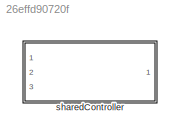
MODEL slx_26effd90720f
KIND library
CONFIG AbsTol = auto
CONFIG EnableMultiTasking = off
CONFIG FixedStep = auto
CONFIG MaxStep = auto
CONFIG MinStep = auto
CONFIG RelTol = 1e-3
CONFIG SampleTimeConstraint = Unconstrained
CONFIG Solver = VariableStepAuto
CONFIG SolverName = VariableStepAuto
CONFIG StartTime = 0.0
CONFIG StopTime = 10.0
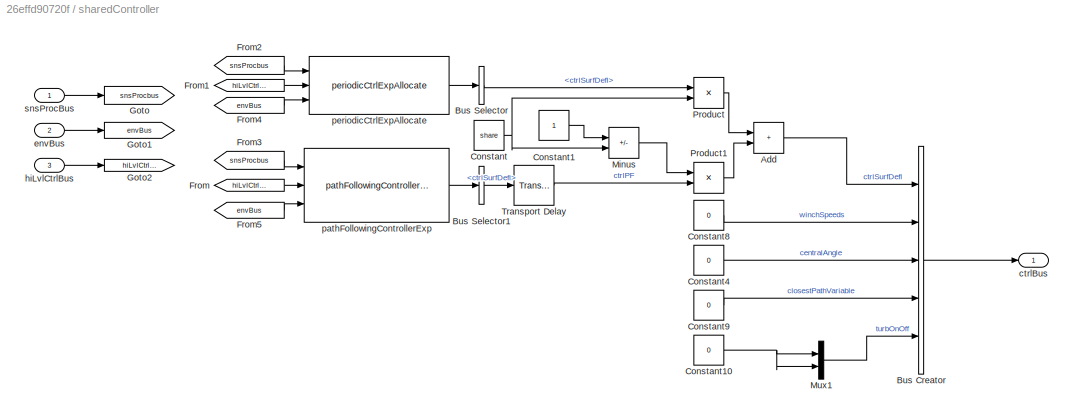
BLOCK [SubSystem] sharedController
  Ports = [3, 1]
  RequestExecContextInheritance = off
BLOCK [Sum] sharedController/Add
  IconShape = rectangular
  Ports = [2, 1]
BLOCK [BusCreator] sharedController/Bus Creator
  DisplayOption = bar
  InheritFromInputs = off
  Inputs = 5
  OutDataTypeStr = Bus: fltCtrlBus
  Ports = [5, 1]
BLOCK [BusSelector] sharedController/Bus Selector
  OutputSignals = ctrlSurfDefl
  Ports = [1, 1]
BLOCK [BusSelector] sharedController/Bus Selector1
  OutputSignals = ctrlSurfDefl
  Ports = [1, 1]
BLOCK [Constant] sharedController/Constant
  Value = share
BLOCK [Constant] sharedController/Constant1
BLOCK [Constant] sharedController/Constant10
  Value = 0
BLOCK [Constant] sharedController/Constant4
  Value = 0
BLOCK [Constant] sharedController/Constant8
  Value = 0
BLOCK [Constant] sharedController/Constant9
  Value = 0
BLOCK [From] sharedController/From
  GotoTag = hiLvlCtrlBus
BLOCK [From] sharedController/From1
  GotoTag = hiLvlCtrlBus
BLOCK [From] sharedController/From2
  GotoTag = snsProcbus
BLOCK [From] sharedController/From3
  GotoTag = snsProcbus
BLOCK [From] sharedController/From4
  GotoTag = envBus
BLOCK [From] sharedController/From5
  GotoTag = envBus
BLOCK [Goto] sharedController/Goto
  GotoTag = snsProcbus
BLOCK [Goto] sharedController/Goto1
  GotoTag = envBus
BLOCK [Goto] sharedController/Goto2
  GotoTag = hiLvlCtrlBus
BLOCK [Sum] sharedController/Minus
  IconShape = rectangular
  Inputs = +-
  Ports = [2, 1]
BLOCK [Mux] sharedController/Mux1
  DisplayOption = bar
  Inputs = 2
  Ports = [2, 1]
BLOCK [Product] sharedController/Product
  Ports = [2, 1]
BLOCK [Product] sharedController/Product1
  Ports = [2, 1]
BLOCK [TransportDelay] sharedController/Transport Delay
  DelayTime = .03
  Ports = [1, 1]
BLOCK [Outport] sharedController/ctrlBus
  OutDataTypeStr = Bus: fltCtrlBus
  VectorParamsAs1DForOutWhenUnconnected = off
BLOCK [Inport] sharedController/envBus
  OutDataTypeStr = Bus: envBus
  Port = 2
BLOCK [Inport] sharedController/hiLvlCtrlBus
  OutDataTypeStr = Bus: hiLvlCtrlBus
  Port = 3
BLOCK [Reference] sharedController/pathFollowingControllerExp  REF=pathFollowingControllerExp_cl/pathFollowingControllerExp
  Ports = [3, 1]
  SourceBlock = pathFollowingControllerExp_cl/pathFollowingControllerExp
BLOCK [Reference] sharedController/periodicCtrlExpAllocate  REF=periodicCtrlExpAllocate/periodicCtrlExpAllocate
  Ports = [3, 1]
  SourceBlock = periodicCtrlExpAllocate/periodicCtrlExpAllocate
BLOCK [Inport] sharedController/snsProcBus
  OutDataTypeStr = Bus: sensorsProcessingBus
LINE sharedController/Add:1 -> sharedController/Bus Creator:1
LINE sharedController/Bus Creator:1 -> sharedController/ctrlBus:1
LINE sharedController/Bus Selector1:1 -> sharedController/Transport Delay:1
LINE sharedController/Bus Selector:1 -> sharedController/Product:1
NET sharedController/Constant10:1 -> sharedController/Mux1:1, sharedController/Mux1:2
LINE sharedController/Constant1:1 -> sharedController/Minus:1
LINE sharedController/Constant4:1 -> sharedController/Bus Creator:3
LINE sharedController/Constant8:1 -> sharedController/Bus Creator:2
LINE sharedController/Constant9:1 -> sharedController/Bus Creator:4
NET sharedController/Constant:1 -> sharedController/Minus:2, sharedController/Product:2
LINE sharedController/From1:1 -> sharedController/periodicCtrlExpAllocate:2
LINE sharedController/From2:1 -> sharedController/periodicCtrlExpAllocate:1
LINE sharedController/From3:1 -> sharedController/pathFollowingControllerExp:1
LINE sharedController/From4:1 -> sharedController/periodicCtrlExpAllocate:3
LINE sharedController/From5:1 -> sharedController/pathFollowingControllerExp:3
LINE sharedController/From:1 -> sharedController/pathFollowingControllerExp:2
LINE sharedController/Minus:1 -> sharedController/Product1:1
LINE sharedController/Mux1:1 -> sharedController/Bus Creator:5
LINE sharedController/Product1:1 -> sharedController/Add:2
LINE sharedController/Product:1 -> sharedController/Add:1
LINE sharedController/Transport Delay:1 -> sharedController/Product1:2
LINE sharedController/envBus:1 -> sharedController/Goto1:1
LINE sharedController/hiLvlCtrlBus:1 -> sharedController/Goto2:1
LINE sharedController/pathFollowingControllerExp:1 -> sharedController/Bus Selector1:1
LINE sharedController/periodicCtrlExpAllocate:1 -> sharedController/Bus Selector:1
LINE sharedController/snsProcBus:1 -> sharedController/Goto:1
note: NET lines group one-source signal fan-out (src -> all destinations, sorted); 1:1 wires keep LINE
